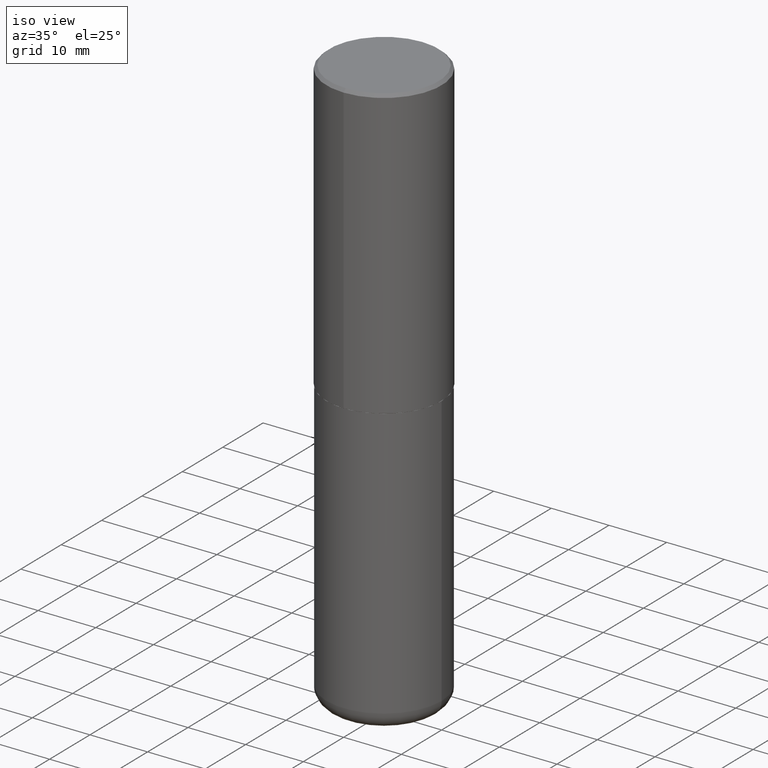
[diagram: clean part render]
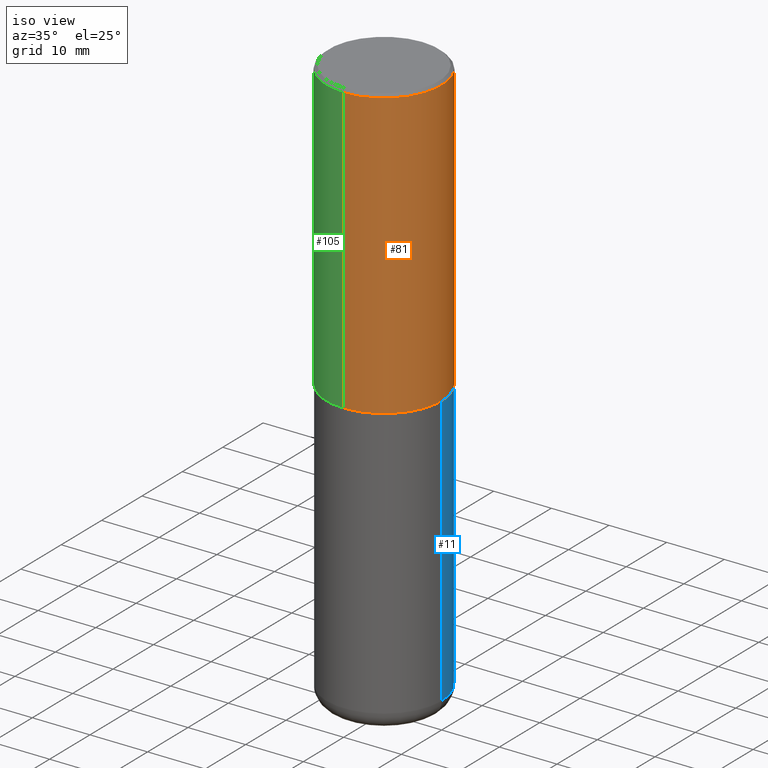
[diagram: same view with three faces highlighted in distinct colors, each labeled with its STEP entity id]
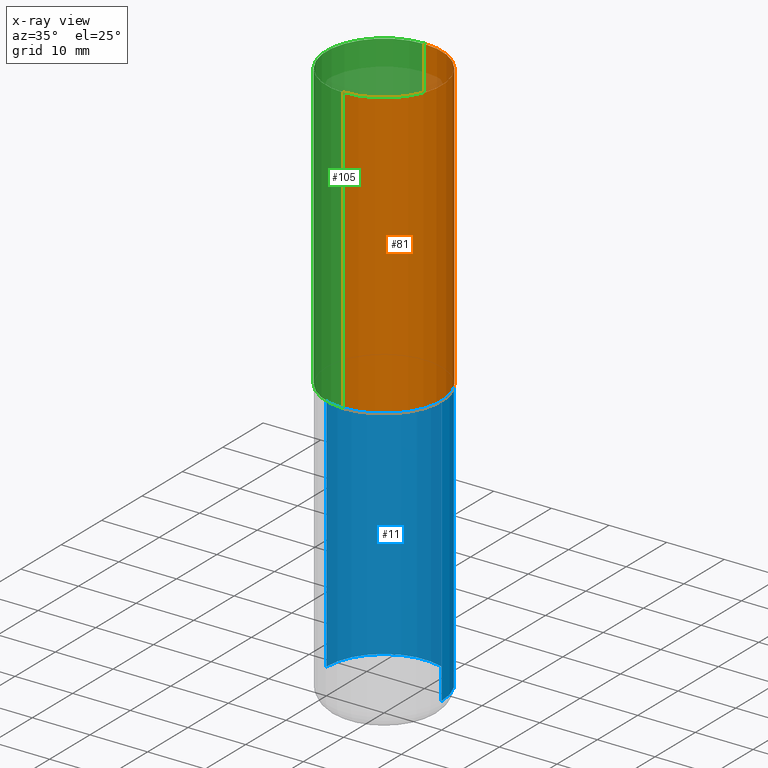
[diagram: x-ray of the same camera — body ghosted, the three highlighted faces saturated]
A machine part, iso view with three faces highlighted in distinct colors.
The next image is the same camera in x-ray (body ghosted, the three faces saturated) — at least one of them is partly hidden behind the body in this view.
Their STEP definitions:

[orange] entity #81 — the highlighted cylindrical surface (partial cylindrical patch) has radius 10 mm, axis along (-0, 0, 1).
#13 = EDGE_CURVE ( 'NONE', #392, #106, #385, .T. ) ;
#19 = AXIS2_PLACEMENT_3D ( 'NONE', #28, #355, #98 ) ;
#28 = CARTESIAN_POINT ( 'NONE',  ( 4.895804672692082949E-31, -6.975992770289649092E-17, -0.02000000000000008715 ) ) ;
#30 = ORIENTED_EDGE ( 'NONE', *, *, #13, .F. ) ;
#33 = CARTESIAN_POINT ( 'NONE',  ( 0.000000000000000000, 0.000000000000000000, 0.000000000000000000 ) ) ;
#38 = DIRECTION ( 'NONE',  ( -2.447902336346030930E-29, 3.487996385144809755E-15, 1.000000000000000000 ) ) ;
#42 = EDGE_CURVE ( 'NONE', #239, #243, #414, .T. ) ;
#56 = EDGE_CURVE ( 'NONE', #106, #243, #217, .T. ) ;
#58 = CARTESIAN_POINT ( 'NONE',  ( -2.749192406205084400E-15, -0.3937000000000002164, 1.373224176831512262E-15 ) ) ;
#62 = CYLINDRICAL_SURFACE ( 'NONE', #102, 0.3937000000000002164 ) ;
#81 = ADVANCED_FACE ( 'NONE', ( #323 ), #62, .T. ) ;
#98 = DIRECTION ( 'NONE',  ( -6.982962677686265133E-15, -1.000000000000000000, 3.491137977679279029E-15 ) ) ;
#102 = AXIS2_PLACEMENT_3D ( 'NONE', #33, #223, #255 ) ;
#104 = DIRECTION ( 'NONE',  ( -6.982962677686265922E-15, -1.000000000000000000, 3.469453890861393601E-15 ) ) ;
#106 = VERTEX_POINT ( 'NONE', #132 ) ;
#124 = ORIENTED_EDGE ( 'NONE', *, *, #384, .T. ) ;
#126 = CARTESIAN_POINT ( 'NONE',  ( 2.749192406205084005E-15, 0.3937000000000000499, -0.02000000000000146105 ) ) ;
#131 = VECTOR ( 'NONE', #347, 39.37007874015748143 ) ;
#132 = CARTESIAN_POINT ( 'NONE',  ( -2.700978061722651647E-15, -0.3937000000000001609, -0.01999999999999870978 ) ) ;
#138 = CARTESIAN_POINT ( 'NONE',  ( -2.749192406205036674E-15, -0.3937000000000070998, -1.967499999999998694 ) ) ;
#167 = VECTOR ( 'NONE', #317, 39.37007874015748143 ) ;
#217 = CIRCLE ( 'NONE', #19, 0.3937000000000001054 ) ;
#223 = DIRECTION ( 'NONE',  ( -2.447902336346030930E-29, 3.487996385144809755E-15, 1.000000000000000000 ) ) ;
#225 = CARTESIAN_POINT ( 'NONE',  ( 2.797406750687540424E-15, 0.3936999999999934441, -1.967500000000001359 ) ) ;
#234 = CARTESIAN_POINT ( 'NONE',  ( 4.816247846760815671E-29, -6.862632887772413316E-15, -1.967500000000000027 ) ) ;
#239 = VERTEX_POINT ( 'NONE', #225 ) ;
#243 = VERTEX_POINT ( 'NONE', #126 ) ;
#255 = DIRECTION ( 'NONE',  ( -6.982962677686265922E-15, -1.000000000000000000, 3.487996385144809360E-15 ) ) ;
#271 = EDGE_LOOP ( 'NONE', ( #124, #350, #279, #30 ) ) ;
#279 = ORIENTED_EDGE ( 'NONE', *, *, #56, .F. ) ;
#291 = CIRCLE ( 'NONE', #346, 0.3937000000000002720 ) ;
#317 = DIRECTION ( 'NONE',  ( -2.447902336346030930E-29, 3.487996385144809360E-15, 1.000000000000000000 ) ) ;
#323 = FACE_OUTER_BOUND ( 'NONE', #271, .T. ) ;
#346 = AXIS2_PLACEMENT_3D ( 'NONE', #234, #38, #104 ) ;
#347 = DIRECTION ( 'NONE',  ( -2.447902336346030930E-29, 3.487996385144809360E-15, 1.000000000000000000 ) ) ;
#350 = ORIENTED_EDGE ( 'NONE', *, *, #42, .T. ) ;
#355 = DIRECTION ( 'NONE',  ( -2.447902336346030930E-29, 3.487996385144809755E-15, 1.000000000000000000 ) ) ;
#384 = EDGE_CURVE ( 'NONE', #392, #239, #291, .T. ) ;
#385 = LINE ( 'NONE', #58, #167 ) ;
#392 = VERTEX_POINT ( 'NONE', #138 ) ;
#407 = CARTESIAN_POINT ( 'NONE',  ( 2.797406750687515575E-15, 0.3937000000000002164, -1.373224176831512262E-15 ) ) ;
#414 = LINE ( 'NONE', #407, #131 ) ;

[blue] entity #11 — the highlighted cylindrical surface (partial cylindrical patch) has radius 10 mm, axis along (-0, 0, 1).
#6 = CARTESIAN_POINT ( 'NONE',  ( 4.813905344975441835E-29, -6.872981015512731707E-15, -1.968500000000000139 ) ) ;
#11 = ADVANCED_FACE ( 'NONE', ( #387 ), #257, .T. ) ;
#22 = EDGE_CURVE ( 'NONE', #268, #73, #163, .T. ) ;
#26 = ORIENTED_EDGE ( 'NONE', *, *, #357, .F. ) ;
#44 = CARTESIAN_POINT ( 'NONE',  ( 0.3937000000000001054, -1.608281049111317408E-14, -3.818900000000000183 ) ) ;
#63 = AXIS2_PLACEMENT_3D ( 'NONE', #192, #353, #410 ) ;
#67 = CARTESIAN_POINT ( 'NONE',  ( 9.339000823940418668E-29, -1.333361808490808928E-14, -3.818900000000000183 ) ) ;
#73 = VERTEX_POINT ( 'NONE', #290 ) ;
#100 = DIRECTION ( 'NONE',  ( -2.445468806185136877E-29, 3.491481338843145188E-15, 1.000000000000000000 ) ) ;
#134 = VERTEX_POINT ( 'NONE', #191 ) ;
#137 = CARTESIAN_POINT ( 'NONE',  ( 0.3937000000000001054, -2.749192406205084005E-15, 1.919750796630860452E-29 ) ) ;
#157 = AXIS2_PLACEMENT_3D ( 'NONE', #6, #166, #361 ) ;
#163 = LINE ( 'NONE', #220, #203 ) ;
#166 = DIRECTION ( 'NONE',  ( -2.445468806185136597E-29, 3.491481338843145583E-15, 1.000000000000000000 ) ) ;
#178 = ORIENTED_EDGE ( 'NONE', *, *, #307, .T. ) ;
#185 = DIRECTION ( 'NONE',  ( -2.445468806185136877E-29, 3.491481338843145188E-15, 1.000000000000000000 ) ) ;
#191 = CARTESIAN_POINT ( 'NONE',  ( 0.3937000000000000499, -9.622173421717814924E-15, -1.968500000000000139 ) ) ;
#192 = CARTESIAN_POINT ( 'NONE',  ( 0.000000000000000000, 0.000000000000000000, 0.000000000000000000 ) ) ;
#201 = DIRECTION ( 'NONE',  ( 1.000000000000000000, -6.982962677686266711E-15, 0.000000000000000000 ) ) ;
#203 = VECTOR ( 'NONE', #185, 39.37007874015748143 ) ;
#220 = CARTESIAN_POINT ( 'NONE',  ( -0.3937000000000001054, 2.797406750687515181E-15, -1.936584745033357016E-29 ) ) ;
#250 = ORIENTED_EDGE ( 'NONE', *, *, #390, .F. ) ;
#257 = CYLINDRICAL_SURFACE ( 'NONE', #63, 0.3937000000000001054 ) ;
#262 = LINE ( 'NONE', #137, #395 ) ;
#268 = VERTEX_POINT ( 'NONE', #411 ) ;
#270 = AXIS2_PLACEMENT_3D ( 'NONE', #67, #380, #201 ) ;
#290 = CARTESIAN_POINT ( 'NONE',  ( -0.3937000000000000499, -7.305892799522895709E-15, -1.968500000000000139 ) ) ;
#293 = EDGE_LOOP ( 'NONE', ( #178, #301, #250, #26 ) ) ;
#301 = ORIENTED_EDGE ( 'NONE', *, *, #22, .T. ) ;
#303 = CIRCLE ( 'NONE', #157, 0.3937000000000000499 ) ;
#307 = EDGE_CURVE ( 'NONE', #325, #268, #363, .T. ) ;
#325 = VERTEX_POINT ( 'NONE', #44 ) ;
#353 = DIRECTION ( 'NONE',  ( -2.445468806185136597E-29, 3.491481338843145583E-15, 1.000000000000000000 ) ) ;
#357 = EDGE_CURVE ( 'NONE', #325, #134, #262, .T. ) ;
#361 = DIRECTION ( 'NONE',  ( 1.000000000000000000, -6.982962677686265133E-15, 0.000000000000000000 ) ) ;
#363 = CIRCLE ( 'NONE', #270, 0.3937000000000001054 ) ;
#380 = DIRECTION ( 'NONE',  ( -2.445468806185136597E-29, 3.491481338843145583E-15, 1.000000000000000000 ) ) ;
#387 = FACE_OUTER_BOUND ( 'NONE', #293, .T. ) ;
#390 = EDGE_CURVE ( 'NONE', #134, #73, #303, .T. ) ;
#395 = VECTOR ( 'NONE', #100, 39.37007874015748143 ) ;
#410 = DIRECTION ( 'NONE',  ( 1.000000000000000000, -6.982962677686266711E-15, 4.876176775795935793E-29 ) ) ;
#411 = CARTESIAN_POINT ( 'NONE',  ( -0.3937000000000001054, -1.053621133422057529E-14, -3.818900000000000183 ) ) ;

[green] entity #105 — the highlighted cylindrical surface (partial cylindrical patch) has radius 10 mm, axis along (-0, 0, 1).
#1 = CARTESIAN_POINT ( 'NONE',  ( 4.816247846760815671E-29, -6.862632887772413316E-15, -1.967500000000000027 ) ) ;
#5 = CIRCLE ( 'NONE', #283, 0.3937000000000002720 ) ;
#13 = EDGE_CURVE ( 'NONE', #392, #106, #385, .T. ) ;
#39 = AXIS2_PLACEMENT_3D ( 'NONE', #314, #97, #360 ) ;
#42 = EDGE_CURVE ( 'NONE', #239, #243, #414, .T. ) ;
#58 = CARTESIAN_POINT ( 'NONE',  ( -2.749192406205084400E-15, -0.3937000000000002164, 1.373224176831512262E-15 ) ) ;
#65 = DIRECTION ( 'NONE',  ( -2.447902336346030930E-29, 3.487996385144809755E-15, 1.000000000000000000 ) ) ;
#79 = EDGE_CURVE ( 'NONE', #243, #106, #156, .T. ) ;
#88 = AXIS2_PLACEMENT_3D ( 'NONE', #127, #65, #129 ) ;
#97 = DIRECTION ( 'NONE',  ( -2.447902336346030930E-29, 3.487996385144809755E-15, 1.000000000000000000 ) ) ;
#105 = ADVANCED_FACE ( 'NONE', ( #183 ), #159, .T. ) ;
#106 = VERTEX_POINT ( 'NONE', #132 ) ;
#113 = ORIENTED_EDGE ( 'NONE', *, *, #341, .T. ) ;
#126 = CARTESIAN_POINT ( 'NONE',  ( 2.749192406205084005E-15, 0.3937000000000000499, -0.02000000000000146105 ) ) ;
#127 = CARTESIAN_POINT ( 'NONE',  ( 4.895804672692082949E-31, -6.975992770289649092E-17, -0.02000000000000008715 ) ) ;
#129 = DIRECTION ( 'NONE',  ( -6.982962677686265133E-15, -1.000000000000000000, 3.491137977679279029E-15 ) ) ;
#131 = VECTOR ( 'NONE', #347, 39.37007874015748143 ) ;
#132 = CARTESIAN_POINT ( 'NONE',  ( -2.700978061722651647E-15, -0.3937000000000001609, -0.01999999999999870978 ) ) ;
#138 = CARTESIAN_POINT ( 'NONE',  ( -2.749192406205036674E-15, -0.3937000000000070998, -1.967499999999998694 ) ) ;
#146 = ORIENTED_EDGE ( 'NONE', *, *, #42, .F. ) ;
#156 = CIRCLE ( 'NONE', #88, 0.3937000000000001054 ) ;
#159 = CYLINDRICAL_SURFACE ( 'NONE', #39, 0.3937000000000002164 ) ;
#167 = VECTOR ( 'NONE', #317, 39.37007874015748143 ) ;
#183 = FACE_OUTER_BOUND ( 'NONE', #211, .T. ) ;
#208 = ORIENTED_EDGE ( 'NONE', *, *, #79, .F. ) ;
#211 = EDGE_LOOP ( 'NONE', ( #146, #113, #397, #208 ) ) ;
#225 = CARTESIAN_POINT ( 'NONE',  ( 2.797406750687540424E-15, 0.3936999999999934441, -1.967500000000001359 ) ) ;
#239 = VERTEX_POINT ( 'NONE', #225 ) ;
#243 = VERTEX_POINT ( 'NONE', #126 ) ;
#263 = DIRECTION ( 'NONE',  ( -6.982962677686265922E-15, -1.000000000000000000, 3.469453890861393601E-15 ) ) ;
#283 = AXIS2_PLACEMENT_3D ( 'NONE', #1, #326, #263 ) ;
#314 = CARTESIAN_POINT ( 'NONE',  ( 0.000000000000000000, 0.000000000000000000, 0.000000000000000000 ) ) ;
#317 = DIRECTION ( 'NONE',  ( -2.447902336346030930E-29, 3.487996385144809360E-15, 1.000000000000000000 ) ) ;
#326 = DIRECTION ( 'NONE',  ( -2.447902336346030930E-29, 3.487996385144809755E-15, 1.000000000000000000 ) ) ;
#341 = EDGE_CURVE ( 'NONE', #239, #392, #5, .T. ) ;
#347 = DIRECTION ( 'NONE',  ( -2.447902336346030930E-29, 3.487996385144809360E-15, 1.000000000000000000 ) ) ;
#360 = DIRECTION ( 'NONE',  ( -6.982962677686265922E-15, -1.000000000000000000, 3.487996385144809360E-15 ) ) ;
#385 = LINE ( 'NONE', #58, #167 ) ;
#392 = VERTEX_POINT ( 'NONE', #138 ) ;
#397 = ORIENTED_EDGE ( 'NONE', *, *, #13, .T. ) ;
#407 = CARTESIAN_POINT ( 'NONE',  ( 2.797406750687515575E-15, 0.3937000000000002164, -1.373224176831512262E-15 ) ) ;
#414 = LINE ( 'NONE', #407, #131 ) ;